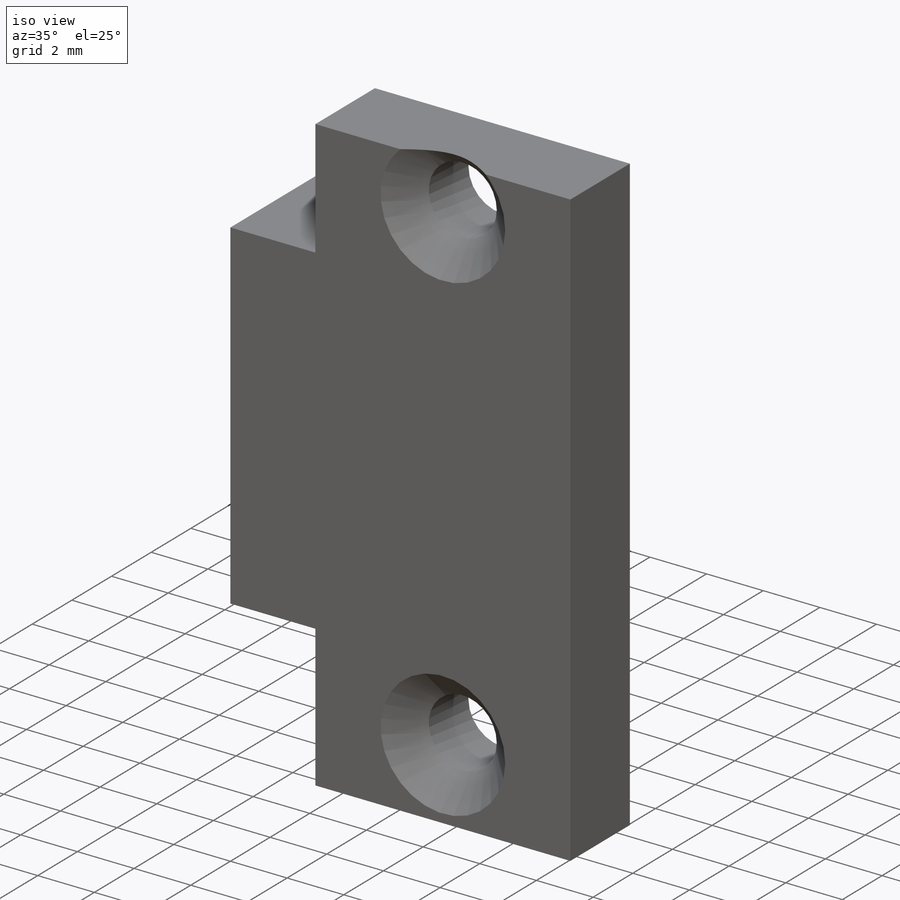
[diagram: iso view]
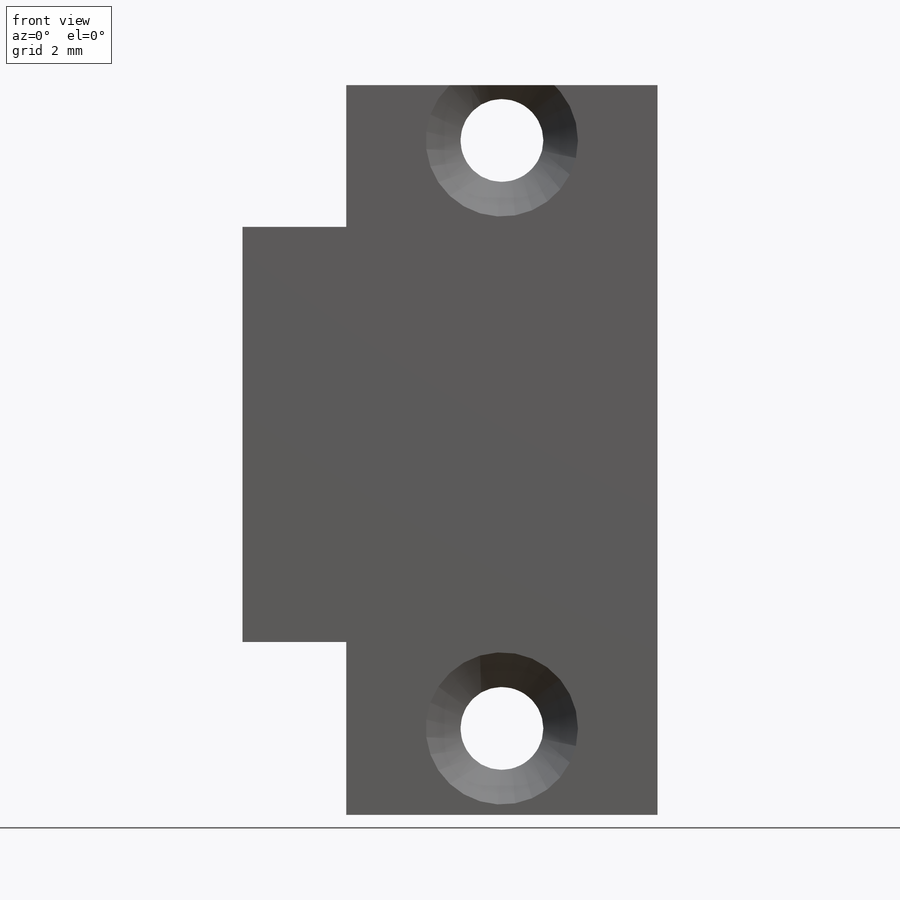
[diagram: front view]
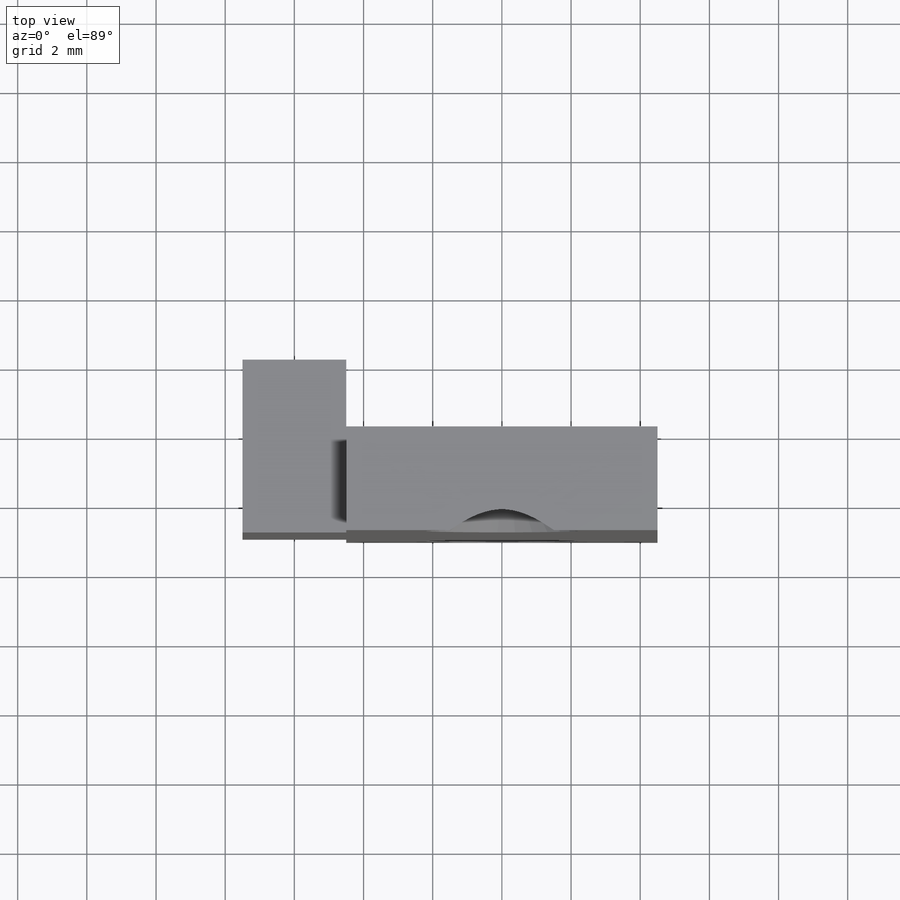
[diagram: top view]
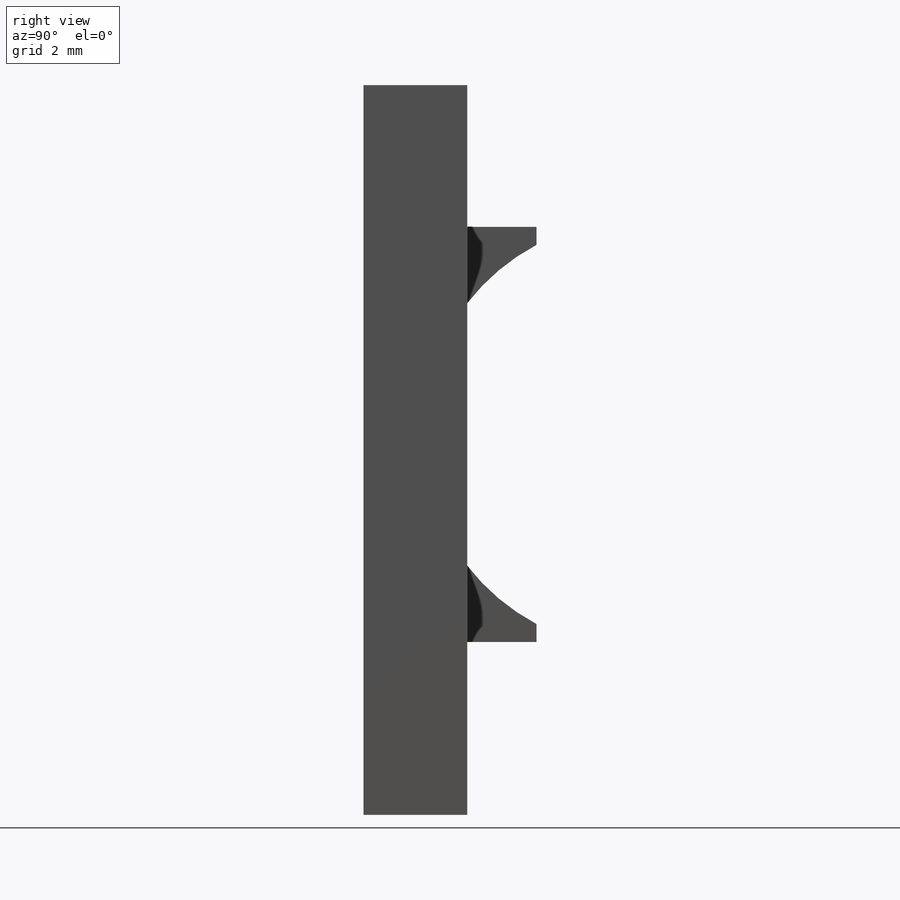
[diagram: right view]
SOLIDWORKS PART (.sldprt)
format: sldprt  version: not decoded by parser v0  size: 218,112 bytes
history: native  units: mm
features: sketch x5, extrude x2, material x1, hole x1, cut_extrude x1 (+13 scaffold rows collapsed)
feature tree (23):
  scaffold x13  (default folders/planes/origin — collapsed)
  material  "ABS"
  sketch  "Sketch1"  dims[D1=22.0mm D2=9.0mm]
  extrude  "Boss-Extrude1"  Depth=3mm
  hole  "CSK for M2 Flat Head Machine Screw1"  Diameter=2.4mm Depth=10mm
  sketch  "Sketch3"  dims[D1=17.0mm]
  sketch  "Sketch2"  dims[hole-wizard template sketch: 39 standard entries collapsed; hole parameters kept: c13.Hole Dia.=2.4mm c13.Hole Depth=10.0mm c13.Near C'Sink Dia.=4.4mm c13.D4=~33.297463mm c13.Near C'Sink Angle=90.0deg c14.D5=~14.816244mm c14.Drill Angle=118.0deg]
  sketch  "Sketch4"  dims[D1=6.2mm D2=12.0mm D3=4.9mm D4=2.0mm]
  extrude  "Boss-Extrude2"  Depth=3mm
  sketch  "Sketch5"
  cut_extrude  "Cut-Extrude1"  Depth=0.9mm
decode coverage: 8 of 9 modeling features carry decoded parameters
note: ~ marks probable driven/reference dimensions
note: suppression state not decoded; provenance and decode notes live in map.json
